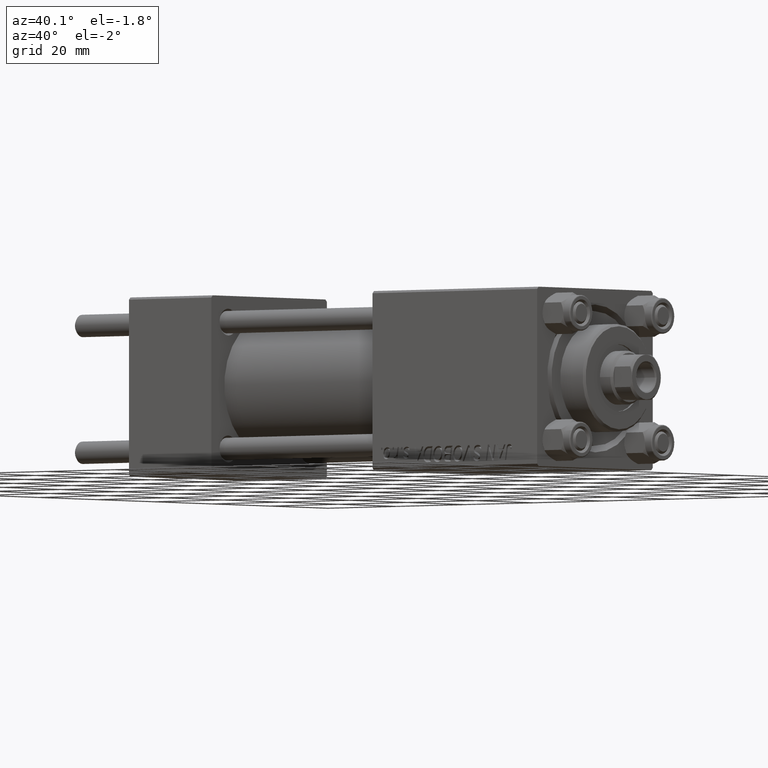
[diagram: clean part render]
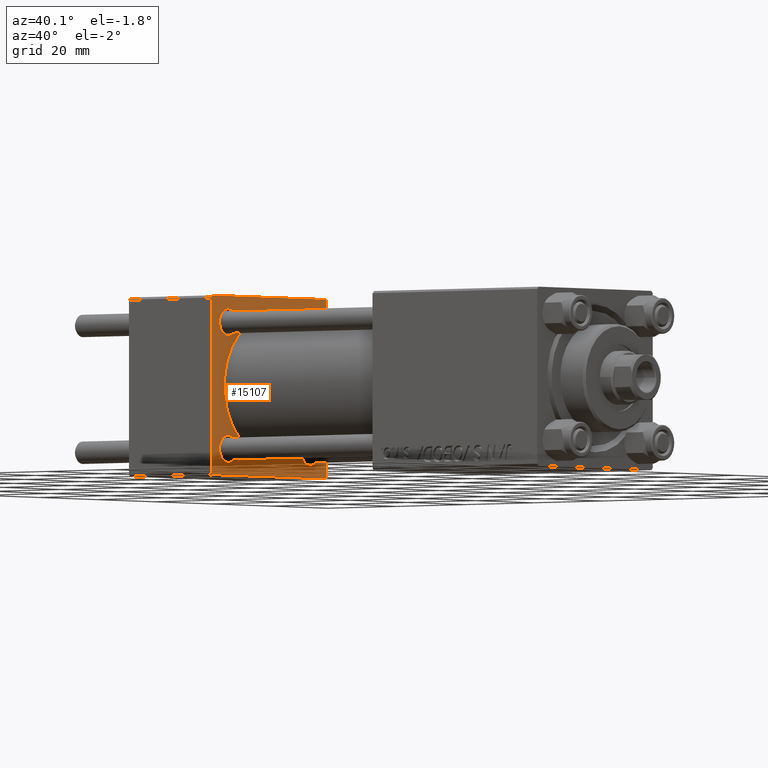
[diagram: same view with one face highlighted and labeled with its STEP entity id]
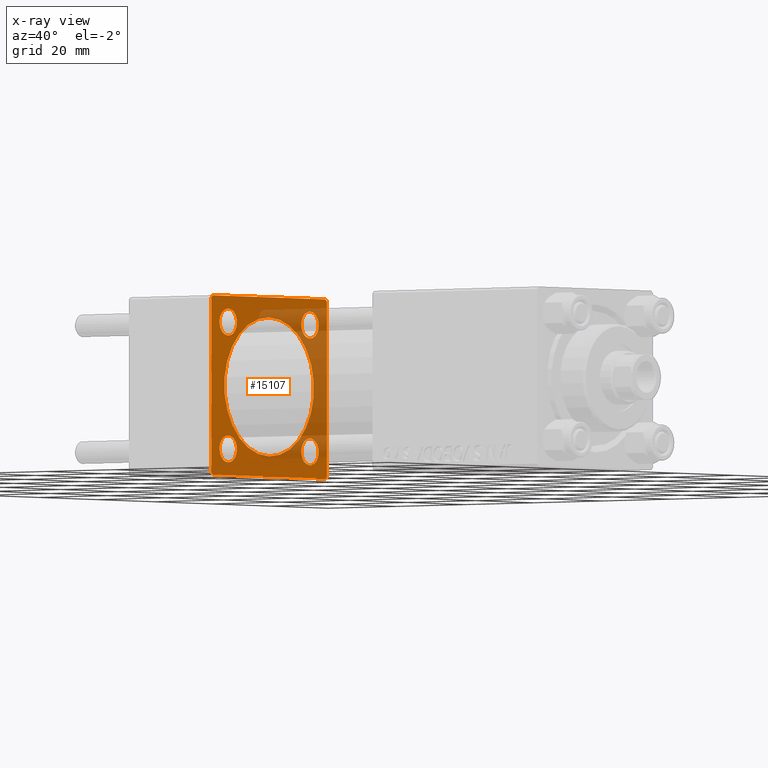
[diagram: x-ray of the same camera — body ghosted, the highlighted face saturated]
A machine part, auxiliary view. The second image highlights one B-rep face of the part: STEP entity #15107.
The next image is the same camera in x-ray: the body ghosted, the highlighted face saturated — about 34% of this face is hidden behind the body in this view.
In plain terms, the highlighted planar face has unit normal (-1, 0, 0).
Its self-contained STEP definition (entity closure, byte-faithful):
#38 = VERTEX_POINT ( 'NONE', #26069 ) ;
#338 = CARTESIAN_POINT ( 'NONE',  ( 24.00000000000000000, 14.14999999999999858, 14.15000000000000036 ) ) ;
#1605 = PLANE ( 'NONE',  #39180 ) ;
#1984 = CARTESIAN_POINT ( 'NONE',  ( 24.00000000000000000, 14.14999999999999858, -14.15000000000000036 ) ) ;
#2269 = EDGE_CURVE ( 'NONE', #15639, #38421, #38700, .T. ) ;
#2558 = DIRECTION ( 'NONE',  ( 1.000000000000000000, 0.000000000000000000, 0.000000000000000000 ) ) ;
#2698 = LINE ( 'NONE', #45224, #36508 ) ;
#3028 = DIRECTION ( 'NONE',  ( 0.000000000000000000, 0.000000000000000000, 1.000000000000000000 ) ) ;
#3781 = DIRECTION ( 'NONE',  ( -1.000000000000000000, -0.000000000000000000, -0.000000000000000000 ) ) ;
#3895 = EDGE_CURVE ( 'NONE', #37053, #6125, #36525, .T. ) ;
#3959 = CARTESIAN_POINT ( 'NONE',  ( 24.00000000000000000, 20.00000000000000000, -20.00000000000000711 ) ) ;
#3995 = AXIS2_PLACEMENT_3D ( 'NONE', #4548, #16651, #43833 ) ;
#4262 = VERTEX_POINT ( 'NONE', #33699 ) ;
#4535 = VECTOR ( 'NONE', #28039, 1000.000000000000000 ) ;
#4548 = CARTESIAN_POINT ( 'NONE',  ( 24.00000000000000000, 14.14999999999999858, -14.15000000000000036 ) ) ;
#4929 = EDGE_CURVE ( 'NONE', #6125, #37053, #27607, .T. ) ;
#5615 = DIRECTION ( 'NONE',  ( -1.000000000000000000, -0.000000000000000000, -0.000000000000000000 ) ) ;
#6058 = CARTESIAN_POINT ( 'NONE',  ( 24.00000000000000000, 0.000000000000000000, 0.000000000000000000 ) ) ;
#6125 = VERTEX_POINT ( 'NONE', #35326 ) ;
#6234 = EDGE_CURVE ( 'NONE', #41260, #29520, #35690, .T. ) ;
#6305 = DIRECTION ( 'NONE',  ( 0.000000000000000000, 0.000000000000000000, 1.000000000000000000 ) ) ;
#6818 = CARTESIAN_POINT ( 'NONE',  ( 24.00000000000000000, -14.14999999999999503, -14.15000000000000391 ) ) ;
#7778 = DIRECTION ( 'NONE',  ( -0.000000000000000000, -0.7071067811865500152, -0.7071067811865451302 ) ) ;
#7990 = DIRECTION ( 'NONE',  ( 0.000000000000000000, -1.000000000000000000, 1.734723475976807094E-16 ) ) ;
#8313 = EDGE_LOOP ( 'NONE', ( #26725, #29133, #33555, #47274, #32737, #39046, #47098, #8510 ) ) ;
#8510 = ORIENTED_EDGE ( 'NONE', *, *, #18893, .T. ) ;
#8529 = DIRECTION ( 'NONE',  ( -1.000000000000000000, -0.000000000000000000, -0.000000000000000000 ) ) ;
#8644 = CIRCLE ( 'NONE', #45612, 15.50000000000000000 ) ;
#9152 = FACE_BOUND ( 'NONE', #37420, .T. ) ;
#9160 = ORIENTED_EDGE ( 'NONE', *, *, #9627, .T. ) ;
#9557 = CIRCLE ( 'NONE', #11149, 2.999999999999976463 ) ;
#9627 = EDGE_CURVE ( 'NONE', #38, #27701, #47854, .T. ) ;
#10895 = CARTESIAN_POINT ( 'NONE',  ( 24.00000000000000000, 20.00000000000000000, 19.49999999999999289 ) ) ;
#11149 = AXIS2_PLACEMENT_3D ( 'NONE', #338, #35827, #19475 ) ;
#11477 = CARTESIAN_POINT ( 'NONE',  ( 24.00000000000000000, -19.50000000000000711, -20.00000000000000000 ) ) ;
#11553 = EDGE_CURVE ( 'NONE', #15639, #35227, #44001, .T. ) ;
#11682 = AXIS2_PLACEMENT_3D ( 'NONE', #40956, #48759, #49742 ) ;
#12122 = CARTESIAN_POINT ( 'NONE',  ( 24.00000000000000000, -19.50000000000000711, -20.00000000000000000 ) ) ;
#12358 = EDGE_LOOP ( 'NONE', ( #34011, #28418 ) ) ;
#12566 = LINE ( 'NONE', #39494, #48070 ) ;
#13190 = DIRECTION ( 'NONE',  ( -1.000000000000000000, 0.000000000000000000, -0.000000000000000000 ) ) ;
#14168 = VECTOR ( 'NONE', #40959, 1000.000000000000000 ) ;
#14294 = DIRECTION ( 'NONE',  ( 0.000000000000000000, -1.000000000000000000, -2.602085213965210149E-16 ) ) ;
#14305 = DIRECTION ( 'NONE',  ( 0.000000000000000000, 0.000000000000000000, 1.000000000000000000 ) ) ;
#14452 = AXIS2_PLACEMENT_3D ( 'NONE', #35714, #8529, #47051 ) ;
#14818 = EDGE_CURVE ( 'NONE', #27278, #35227, #12566, .T. ) ;
#15107 = ADVANCED_FACE ( 'NONE', ( #40126, #28283, #43642, #17461, #9152, #16968 ), #1605, .F. ) ;
#15333 = LINE ( 'NONE', #34215, #18080 ) ;
#15639 = VERTEX_POINT ( 'NONE', #36451 ) ;
#16651 = DIRECTION ( 'NONE',  ( -1.000000000000000000, -0.000000000000000000, -0.000000000000000000 ) ) ;
#16721 = LINE ( 'NONE', #28281, #4535 ) ;
#16968 = FACE_OUTER_BOUND ( 'NONE', #8313, .T. ) ;
#17213 = DIRECTION ( 'NONE',  ( -0.000000000000000000, 0.000000000000000000, 1.000000000000000000 ) ) ;
#17461 = FACE_BOUND ( 'NONE', #29922, .T. ) ;
#18080 = VECTOR ( 'NONE', #7778, 1000.000000000000114 ) ;
#18107 = DIRECTION ( 'NONE',  ( 0.000000000000000000, 0.000000000000000000, 1.000000000000000000 ) ) ;
#18848 = VECTOR ( 'NONE', #41364, 999.9999999999998863 ) ;
#18893 = EDGE_CURVE ( 'NONE', #36439, #38421, #46607, .T. ) ;
#19462 = EDGE_CURVE ( 'NONE', #26455, #23837, #44445, .T. ) ;
#19475 = DIRECTION ( 'NONE',  ( 0.000000000000000000, 0.000000000000000000, 1.000000000000000000 ) ) ;
#20232 = CARTESIAN_POINT ( 'NONE',  ( 24.00000000000000000, 19.50000000000000000, 20.00000000000000000 ) ) ;
#20367 = DIRECTION ( 'NONE',  ( 0.000000000000000000, 0.000000000000000000, -1.000000000000000000 ) ) ;
#21562 = EDGE_CURVE ( 'NONE', #41150, #30477, #2698, .T. ) ;
#21878 = DIRECTION ( 'NONE',  ( -1.000000000000000000, -0.000000000000000000, -0.000000000000000000 ) ) ;
#22038 = ORIENTED_EDGE ( 'NONE', *, *, #3895, .T. ) ;
#23200 = ORIENTED_EDGE ( 'NONE', *, *, #19462, .T. ) ;
#23613 = VECTOR ( 'NONE', #7990, 1000.000000000000000 ) ;
#23773 = EDGE_CURVE ( 'NONE', #30477, #4262, #15333, .T. ) ;
#23837 = VERTEX_POINT ( 'NONE', #27159 ) ;
#23915 = CARTESIAN_POINT ( 'NONE',  ( 24.00000000000000000, 20.00000000000000000, -19.50000000000002132 ) ) ;
#24520 = EDGE_LOOP ( 'NONE', ( #25511, #23200 ) ) ;
#25405 = AXIS2_PLACEMENT_3D ( 'NONE', #25489, #5615, #43884 ) ;
#25427 = ORIENTED_EDGE ( 'NONE', *, *, #4929, .T. ) ;
#25489 = CARTESIAN_POINT ( 'NONE',  ( 24.00000000000000000, -14.14999999999999503, 14.15000000000000391 ) ) ;
#25511 = ORIENTED_EDGE ( 'NONE', *, *, #44889, .T. ) ;
#25761 = LINE ( 'NONE', #36855, #18848 ) ;
#26069 = CARTESIAN_POINT ( 'NONE',  ( 24.00000000000000000, 14.14999999999999858, 17.14999999999997726 ) ) ;
#26455 = VERTEX_POINT ( 'NONE', #44882 ) ;
#26725 = ORIENTED_EDGE ( 'NONE', *, *, #2269, .F. ) ;
#27159 = CARTESIAN_POINT ( 'NONE',  ( 24.00000000000000000, 14.14999999999999858, -17.14999999999997726 ) ) ;
#27278 = VERTEX_POINT ( 'NONE', #10895 ) ;
#27474 = DIRECTION ( 'NONE',  ( 0.000000000000000000, 0.7071067811865401342, -0.7071067811865549002 ) ) ;
#27607 = CIRCLE ( 'NONE', #41253, 3.000000000000000888 ) ;
#27701 = VERTEX_POINT ( 'NONE', #33694 ) ;
#27888 = EDGE_CURVE ( 'NONE', #27278, #41150, #25761, .T. ) ;
#28039 = DIRECTION ( 'NONE',  ( 0.000000000000000000, 8.673617379884036705E-17, -1.000000000000000000 ) ) ;
#28281 = CARTESIAN_POINT ( 'NONE',  ( 24.00000000000000000, -20.00000000000000355, 19.99999999999998934 ) ) ;
#28283 = FACE_BOUND ( 'NONE', #24520, .T. ) ;
#28418 = ORIENTED_EDGE ( 'NONE', *, *, #45130, .T. ) ;
#29133 = ORIENTED_EDGE ( 'NONE', *, *, #11553, .T. ) ;
#29439 = ORIENTED_EDGE ( 'NONE', *, *, #34037, .F. ) ;
#29520 = VERTEX_POINT ( 'NONE', #39040 ) ;
#29922 = EDGE_LOOP ( 'NONE', ( #30631, #9160 ) ) ;
#30477 = VERTEX_POINT ( 'NONE', #33533 ) ;
#30485 = EDGE_LOOP ( 'NONE', ( #25427, #22038 ) ) ;
#30560 = EDGE_CURVE ( 'NONE', #47959, #43210, #31028, .T. ) ;
#30631 = ORIENTED_EDGE ( 'NONE', *, *, #37577, .T. ) ;
#30774 = AXIS2_PLACEMENT_3D ( 'NONE', #1984, #48791, #14305 ) ;
#31028 = CIRCLE ( 'NONE', #25405, 3.000000000000000888 ) ;
#31338 = CIRCLE ( 'NONE', #3995, 2.999999999999976463 ) ;
#31406 = EDGE_CURVE ( 'NONE', #4262, #36439, #16721, .T. ) ;
#32317 = CARTESIAN_POINT ( 'NONE',  ( 24.00000000000000000, 0.000000000000000000, 0.000000000000000000 ) ) ;
#32737 = ORIENTED_EDGE ( 'NONE', *, *, #21562, .T. ) ;
#33403 = CARTESIAN_POINT ( 'NONE',  ( 24.00000000000000000, 20.00000000000000000, -19.50000000000002132 ) ) ;
#33533 = CARTESIAN_POINT ( 'NONE',  ( 24.00000000000000000, -19.49999999999999289, 19.99999999999998934 ) ) ;
#33555 = ORIENTED_EDGE ( 'NONE', *, *, #14818, .F. ) ;
#33694 = CARTESIAN_POINT ( 'NONE',  ( 24.00000000000000000, 14.14999999999999858, 11.15000000000002700 ) ) ;
#33699 = CARTESIAN_POINT ( 'NONE',  ( 24.00000000000000000, -20.00000000000000355, 19.49999999999998224 ) ) ;
#34011 = ORIENTED_EDGE ( 'NONE', *, *, #30560, .T. ) ;
#34037 = EDGE_CURVE ( 'NONE', #29520, #41260, #8644, .T. ) ;
#34215 = CARTESIAN_POINT ( 'NONE',  ( 24.00000000000000000, -20.00000000000000355, 19.49999999999998224 ) ) ;
#34704 = CARTESIAN_POINT ( 'NONE',  ( 24.00000000000000000, -14.14999999999999503, -11.15000000000000391 ) ) ;
#35227 = VERTEX_POINT ( 'NONE', #23915 ) ;
#35326 = CARTESIAN_POINT ( 'NONE',  ( 24.00000000000000000, -14.14999999999999503, -17.15000000000000568 ) ) ;
#35690 = CIRCLE ( 'NONE', #44525, 15.50000000000000000 ) ;
#35714 = CARTESIAN_POINT ( 'NONE',  ( 24.00000000000000000, -14.14999999999999503, 14.15000000000000391 ) ) ;
#35827 = DIRECTION ( 'NONE',  ( -1.000000000000000000, -0.000000000000000000, -0.000000000000000000 ) ) ;
#36439 = VERTEX_POINT ( 'NONE', #43250 ) ;
#36451 = CARTESIAN_POINT ( 'NONE',  ( 24.00000000000000000, 19.50000000000000711, -20.00000000000000711 ) ) ;
#36508 = VECTOR ( 'NONE', #14294, 1000.000000000000000 ) ;
#36525 = CIRCLE ( 'NONE', #42955, 3.000000000000000888 ) ;
#36855 = CARTESIAN_POINT ( 'NONE',  ( 24.00000000000000000, 19.50000000000000000, 20.00000000000000000 ) ) ;
#37053 = VERTEX_POINT ( 'NONE', #34704 ) ;
#37420 = EDGE_LOOP ( 'NONE', ( #29439, #42266 ) ) ;
#37577 = EDGE_CURVE ( 'NONE', #27701, #38, #9557, .T. ) ;
#38421 = VERTEX_POINT ( 'NONE', #11477 ) ;
#38700 = LINE ( 'NONE', #3959, #23613 ) ;
#39040 = CARTESIAN_POINT ( 'NONE',  ( 24.00000000000000000, 0.000000000000000000, 15.50000000000000000 ) ) ;
#39046 = ORIENTED_EDGE ( 'NONE', *, *, #23773, .T. ) ;
#39180 = AXIS2_PLACEMENT_3D ( 'NONE', #32317, #13190, #17213 ) ;
#39494 = CARTESIAN_POINT ( 'NONE',  ( 24.00000000000000000, 20.00000000000000000, 20.00000000000000000 ) ) ;
#39596 = VECTOR ( 'NONE', #27474, 1000.000000000000000 ) ;
#40126 = FACE_BOUND ( 'NONE', #30485, .T. ) ;
#40956 = CARTESIAN_POINT ( 'NONE',  ( 24.00000000000000000, 14.14999999999999858, 14.15000000000000036 ) ) ;
#40959 = DIRECTION ( 'NONE',  ( -0.000000000000000000, 0.7071067811865524577, 0.7071067811865426878 ) ) ;
#41012 = CARTESIAN_POINT ( 'NONE',  ( 24.00000000000000000, -14.14999999999999503, -14.15000000000000391 ) ) ;
#41086 = CARTESIAN_POINT ( 'NONE',  ( 24.00000000000000000, 1.898202538678397557E-15, -15.50000000000000000 ) ) ;
#41150 = VERTEX_POINT ( 'NONE', #20232 ) ;
#41253 = AXIS2_PLACEMENT_3D ( 'NONE', #41012, #21878, #18107 ) ;
#41260 = VERTEX_POINT ( 'NONE', #41086 ) ;
#41364 = DIRECTION ( 'NONE',  ( 0.000000000000000000, -0.7071067811865425767, 0.7071067811865525687 ) ) ;
#42192 = CARTESIAN_POINT ( 'NONE',  ( 24.00000000000000000, -14.14999999999999503, 17.15000000000000568 ) ) ;
#42266 = ORIENTED_EDGE ( 'NONE', *, *, #6234, .F. ) ;
#42955 = AXIS2_PLACEMENT_3D ( 'NONE', #6818, #3781, #3028 ) ;
#43210 = VERTEX_POINT ( 'NONE', #42192 ) ;
#43250 = CARTESIAN_POINT ( 'NONE',  ( 24.00000000000000000, -20.00000000000000000, -19.49999999999999645 ) ) ;
#43642 = FACE_BOUND ( 'NONE', #12358, .T. ) ;
#43833 = DIRECTION ( 'NONE',  ( 0.000000000000000000, 0.000000000000000000, 1.000000000000000000 ) ) ;
#43884 = DIRECTION ( 'NONE',  ( 0.000000000000000000, 0.000000000000000000, 1.000000000000000000 ) ) ;
#44001 = LINE ( 'NONE', #33403, #14168 ) ;
#44445 = CIRCLE ( 'NONE', #30774, 2.999999999999976463 ) ;
#44525 = AXIS2_PLACEMENT_3D ( 'NONE', #47909, #2558, #48392 ) ;
#44882 = CARTESIAN_POINT ( 'NONE',  ( 24.00000000000000000, 14.14999999999999858, -11.15000000000002700 ) ) ;
#44889 = EDGE_CURVE ( 'NONE', #23837, #26455, #31338, .T. ) ;
#45130 = EDGE_CURVE ( 'NONE', #43210, #47959, #49030, .T. ) ;
#45224 = CARTESIAN_POINT ( 'NONE',  ( 24.00000000000000000, 20.00000000000000000, 20.00000000000000000 ) ) ;
#45612 = AXIS2_PLACEMENT_3D ( 'NONE', #6058, #48349, #6305 ) ;
#46607 = LINE ( 'NONE', #12122, #39596 ) ;
#47051 = DIRECTION ( 'NONE',  ( 0.000000000000000000, 0.000000000000000000, 1.000000000000000000 ) ) ;
#47098 = ORIENTED_EDGE ( 'NONE', *, *, #31406, .T. ) ;
#47274 = ORIENTED_EDGE ( 'NONE', *, *, #27888, .T. ) ;
#47698 = CARTESIAN_POINT ( 'NONE',  ( 24.00000000000000000, -14.14999999999999503, 11.15000000000000391 ) ) ;
#47854 = CIRCLE ( 'NONE', #11682, 2.999999999999976463 ) ;
#47909 = CARTESIAN_POINT ( 'NONE',  ( 24.00000000000000000, 0.000000000000000000, 0.000000000000000000 ) ) ;
#47959 = VERTEX_POINT ( 'NONE', #47698 ) ;
#48070 = VECTOR ( 'NONE', #20367, 1000.000000000000000 ) ;
#48349 = DIRECTION ( 'NONE',  ( 1.000000000000000000, 0.000000000000000000, 0.000000000000000000 ) ) ;
#48392 = DIRECTION ( 'NONE',  ( 0.000000000000000000, 0.000000000000000000, 1.000000000000000000 ) ) ;
#48759 = DIRECTION ( 'NONE',  ( -1.000000000000000000, -0.000000000000000000, -0.000000000000000000 ) ) ;
#48791 = DIRECTION ( 'NONE',  ( -1.000000000000000000, -0.000000000000000000, -0.000000000000000000 ) ) ;
#49030 = CIRCLE ( 'NONE', #14452, 3.000000000000000888 ) ;
#49742 = DIRECTION ( 'NONE',  ( 0.000000000000000000, 0.000000000000000000, 1.000000000000000000 ) ) ;